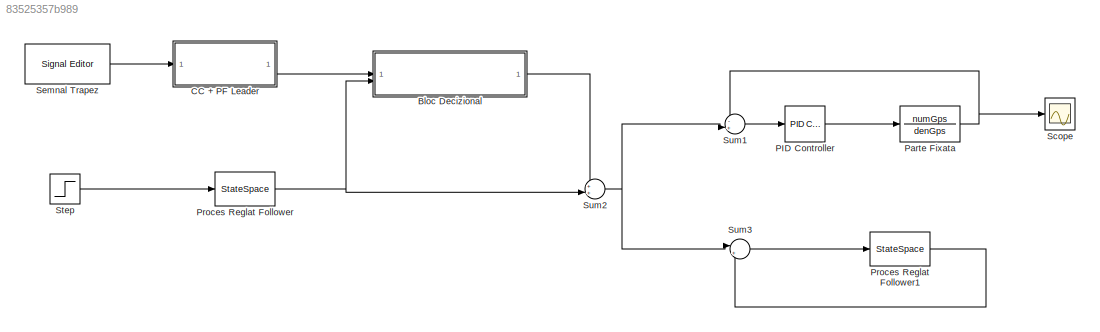
MODEL slx_83525357b989
KIND model
CONFIG AbsTol = auto
CONFIG EnableMultiTasking = off
CONFIG FixedStep = auto
CONFIG MaxStep = auto
CONFIG MinStep = auto
CONFIG RelTol = 1e-3
CONFIG SampleTimeConstraint = Unconstrained
CONFIG SolverName = VariableStepAuto
CONFIG StartTime = 0.0
CONFIG StopTime = 200
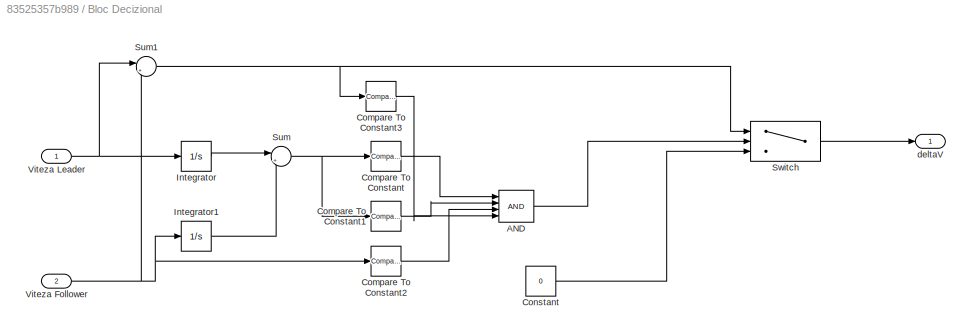
BLOCK [SubSystem] Bloc Decizional
BLOCK [Outport] Bloc Decizional/ deltaV
BLOCK [Logic] Bloc Decizional/AND
  AllPortsSameDT = off
  IconShape = distinctive
  Inputs = 4
  OutDataTypeStr = boolean
BLOCK [Reference] Bloc Decizional/Compare To Constant  REF=simulink/Logic and Bit
Operations/Compare
To Constant
  SourceBlock = simulink/Logic and Bit\nOperations/Compare\nTo Constant
  SourceType = Compare To Constant
BLOCK [Reference] Bloc Decizional/Compare To Constant1  REF=simulink/Logic and Bit
Operations/Compare
To Constant
  SourceBlock = simulink/Logic and Bit\nOperations/Compare\nTo Constant
  SourceType = Compare To Constant
BLOCK [Reference] Bloc Decizional/Compare To Constant2  REF=simulink/Logic and Bit
Operations/Compare
To Constant
  SourceBlock = simulink/Logic and Bit\nOperations/Compare\nTo Constant
  SourceType = Compare To Constant
BLOCK [Reference] Bloc Decizional/Compare To Constant3  REF=simulink/Logic and Bit
Operations/Compare
To Constant
  SourceBlock = simulink/Logic and Bit\nOperations/Compare\nTo Constant
  SourceType = Compare To Constant
BLOCK [Constant] Bloc Decizional/Constant
  Value = 0
BLOCK [Integrator] Bloc Decizional/Integrator
BLOCK [Integrator] Bloc Decizional/Integrator1
BLOCK [Sum] Bloc Decizional/Sum
  Inputs = |+-
BLOCK [Sum] Bloc Decizional/Sum1
  Inputs = |+-
BLOCK [Switch] Bloc Decizional/Switch
  Criteria = u2 ~= 0
  InputSameDT = off
  SaturateOnIntegerOverflow = off
BLOCK [Inport] Bloc Decizional/Viteza Follower
  Port = 2
BLOCK [Inport] Bloc Decizional/Viteza Leader
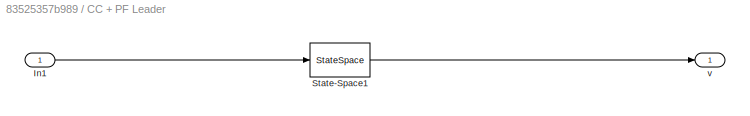
BLOCK [SubSystem] CC + PF Leader
BLOCK [Inport] CC + PF Leader/In1
BLOCK [StateSpace] CC + PF Leader/State-Space1
  A = A - B * k
  B = B * kr
  C = C -  D * k
  D = D * kr
  InitialCondition = 0
BLOCK [Outport] CC + PF Leader/v
BLOCK [Reference] PID Controller  REF=slpidlib/PID Controller
  LibrarySourceBlock = simulink/Continuous/PID Controller
  SourceBlock = slpidlib/PID Controller
  SourceType = PID 1dof
BLOCK [TransferFcn] Parte Fixata
  Denominator = denGps
  Numerator = numGps
BLOCK [StateSpace] Proces Reglat Follower
  A = A - B * k
  B = B * kr
  C = C -  D * k
  D = D * kr
  InitialCondition = 0
BLOCK [StateSpace] Proces Reglat Follower1
  A = A - B * k
  B = B * kr
  C = C -  D * k
  D = D * kr
  InitialCondition = 0
BLOCK [Scope] Scope
  Floating = off
  NumInputPorts = 1
  ScopeSpecificationString = Simulink.scopes.TimeScopeBlockCfg('CurrentConfiguration', extmgr.ConfigurationSet(extmgr.Configuration('Core','General UI',true),extmgr.Configuration('Core','Source UI',true),extmgr.Configuration('Sources','WiredSimulink',true),extmgr.Configuration('Visuals','Time Domain',true,'SerializedDisplays',{struct('MinYLimReal','-7.97762','MaxYLimReal','71.79862','YLabelReal','','MinYLimMag','0.00000','Max...<+1367ch>
BLOCK [Reference] Semnal Trapez  REF=SignalEditorBlockLib/Signal Editor
  LibrarySourceBlock = simulink/Sources/Signal Editor
  SourceBlock = SignalEditorBlockLib/Signal Editor
  SourceType = SignalEditor
  UserDataPersistent = on
BLOCK [Step] Step
  After = 60
  SampleTime = 0
  Time = 20
BLOCK [Sum] Sum1
  Inputs = -+|
BLOCK [Sum] Sum2
  Inputs = ++|
BLOCK [Sum] Sum3
  Inputs = |+-
LINE Bloc Decizional/AND:1 -> Bloc Decizional/Switch:2
LINE Bloc Decizional/Compare To Constant1:1 -> Bloc Decizional/AND:2
LINE Bloc Decizional/Compare To Constant2:1 -> Bloc Decizional/AND:3
LINE Bloc Decizional/Compare To Constant3:1 -> Bloc Decizional/AND:4
LINE Bloc Decizional/Compare To Constant:1 -> Bloc Decizional/AND:1
LINE Bloc Decizional/Constant:1 -> Bloc Decizional/Switch:3
LINE Bloc Decizional/Integrator1:1 -> Bloc Decizional/Sum:2
LINE Bloc Decizional/Integrator:1 -> Bloc Decizional/Sum:1
NET Bloc Decizional/Sum1:1 -> Bloc Decizional/Compare To Constant3:1, Bloc Decizional/Switch:1
NET Bloc Decizional/Sum:1 -> Bloc Decizional/Compare To Constant1:1, Bloc Decizional/Compare To Constant:1
LINE Bloc Decizional/Switch:1 -> Bloc Decizional/ deltaV:1
NET Bloc Decizional/Viteza Follower:1 -> Bloc Decizional/Compare To Constant2:1, Bloc Decizional/Integrator1:1, Bloc Decizional/Sum1:2
NET Bloc Decizional/Viteza Leader:1 -> Bloc Decizional/Integrator:1, Bloc Decizional/Sum1:1
LINE Bloc Decizional:1 -> Sum2:1
LINE CC + PF Leader/In1:1 -> CC + PF Leader/State-Space1:1
LINE CC + PF Leader/State-Space1:1 -> CC + PF Leader/v:1
LINE CC + PF Leader:1 -> Bloc Decizional:1
LINE PID Controller:1 -> Parte Fixata:1
NET Parte Fixata:1 -> Scope:1, Sum1:1
LINE Proces Reglat Follower1:1 -> Sum3:2
NET Proces Reglat Follower:1 -> Bloc Decizional:2, Sum2:2
LINE Semnal Trapez:1 -> CC + PF Leader:1
LINE Step:1 -> Proces Reglat Follower:1
LINE Sum1:1 -> PID Controller:1
NET Sum2:1 -> Sum1:2, Sum3:1
LINE Sum3:1 -> Proces Reglat Follower1:1
note: NET lines group one-source signal fan-out (src -> all destinations, sorted); 1:1 wires keep LINE
